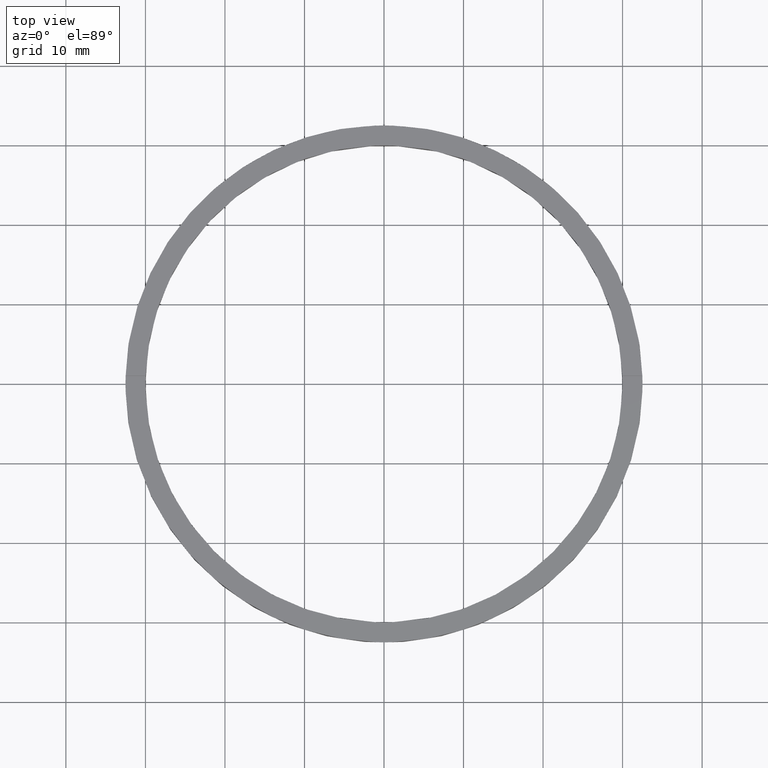
[diagram: clean part render]
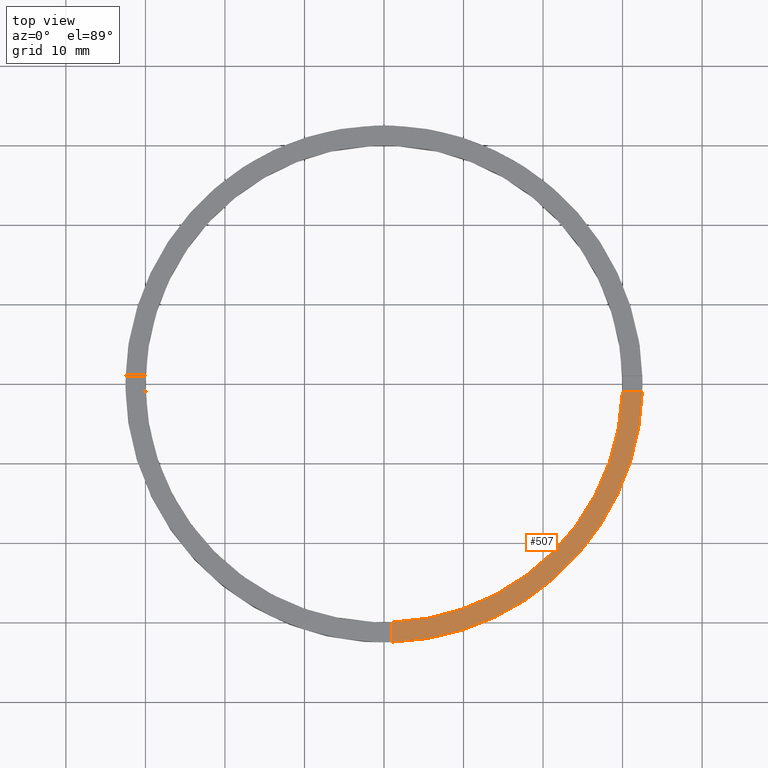
[diagram: same view with one face highlighted and labeled with its STEP entity id]
A machine part, top view. The second image highlights one B-rep face of the part: STEP entity #507.
In plain terms, the highlighted planar face has unit normal (0, 0, 1).
Its self-contained STEP definition (entity closure, byte-faithful):
#25 = FACE_OUTER_BOUND ( 'NONE', #698, .T. ) ;
#56 = VECTOR ( 'NONE', #729, 1000.000000000000000 ) ;
#72 = CARTESIAN_POINT ( 'NONE',  ( 32.48461174156157227, -1.000000000000158540, 3.000000000000000000 ) ) ;
#109 = LINE ( 'NONE', #274, #358 ) ;
#135 = EDGE_CURVE ( 'NONE', #422, #147, #279, .T. ) ;
#141 = CARTESIAN_POINT ( 'NONE',  ( 29.98332870112989212, -1.000000000000158762, 3.000000000000000000 ) ) ;
#147 = VERTEX_POINT ( 'NONE', #72 ) ;
#149 = PLANE ( 'NONE',  #748 ) ;
#179 = ORIENTED_EDGE ( 'NONE', *, *, #271, .F. ) ;
#233 = DIRECTION ( 'NONE',  ( 1.000000000000000000, 6.505213034913022906E-17, 0.000000000000000000 ) ) ;
#240 = CIRCLE ( 'NONE', #745, 30.00000000000000000 ) ;
#271 = EDGE_CURVE ( 'NONE', #457, #147, #109, .T. ) ;
#272 = DIRECTION ( 'NONE',  ( 0.000000000000000000, 0.000000000000000000, 1.000000000000000000 ) ) ;
#274 = CARTESIAN_POINT ( 'NONE',  ( 22.49999999999999645, -1.000000000000159206, 3.000000000000000000 ) ) ;
#279 = CIRCLE ( 'NONE', #624, 32.50000000000000000 ) ;
#317 = LINE ( 'NONE', #778, #56 ) ;
#321 = ORIENTED_EDGE ( 'NONE', *, *, #661, .F. ) ;
#358 = VECTOR ( 'NONE', #233, 1000.000000000000000 ) ;
#422 = VERTEX_POINT ( 'NONE', #681 ) ;
#452 = VERTEX_POINT ( 'NONE', #468 ) ;
#457 = VERTEX_POINT ( 'NONE', #141 ) ;
#468 = CARTESIAN_POINT ( 'NONE',  ( 0.9999999999998384625, -29.98332870112990278, 3.000000000000000000 ) ) ;
#507 = ADVANCED_FACE ( 'NONE', ( #25 ), #149, .T. ) ;
#512 = DIRECTION ( 'NONE',  ( 1.000000000000000000, 0.000000000000000000, 0.000000000000000000 ) ) ;
#519 = DIRECTION ( 'NONE',  ( 1.000000000000000000, 0.000000000000000000, -0.000000000000000000 ) ) ;
#531 = CARTESIAN_POINT ( 'NONE',  ( 0.000000000000000000, 0.000000000000000000, 3.000000000000000000 ) ) ;
#581 = DIRECTION ( 'NONE',  ( 0.000000000000000000, 0.000000000000000000, 1.000000000000000000 ) ) ;
#602 = EDGE_CURVE ( 'NONE', #422, #452, #317, .T. ) ;
#612 = ORIENTED_EDGE ( 'NONE', *, *, #602, .F. ) ;
#614 = DIRECTION ( 'NONE',  ( 1.000000000000000000, 0.000000000000000000, 0.000000000000000000 ) ) ;
#624 = AXIS2_PLACEMENT_3D ( 'NONE', #531, #581, #512 ) ;
#629 = ORIENTED_EDGE ( 'NONE', *, *, #135, .T. ) ;
#636 = CARTESIAN_POINT ( 'NONE',  ( 0.000000000000000000, 0.000000000000000000, 3.000000000000000000 ) ) ;
#661 = EDGE_CURVE ( 'NONE', #452, #457, #240, .T. ) ;
#678 = DIRECTION ( 'NONE',  ( 0.000000000000000000, 0.000000000000000000, 1.000000000000000000 ) ) ;
#681 = CARTESIAN_POINT ( 'NONE',  ( 0.9999999999998386846, -32.48461174156157938, 3.000000000000000000 ) ) ;
#688 = CARTESIAN_POINT ( 'NONE',  ( 0.000000000000000000, 0.000000000000000000, 3.000000000000000000 ) ) ;
#698 = EDGE_LOOP ( 'NONE', ( #179, #321, #612, #629 ) ) ;
#729 = DIRECTION ( 'NONE',  ( -1.301042606982605074E-16, 1.000000000000000000, -0.000000000000000000 ) ) ;
#745 = AXIS2_PLACEMENT_3D ( 'NONE', #636, #678, #614 ) ;
#748 = AXIS2_PLACEMENT_3D ( 'NONE', #688, #272, #519 ) ;
#778 = CARTESIAN_POINT ( 'NONE',  ( 0.9999999999998375744, -22.50000000000018119, 3.000000000000000000 ) ) ;